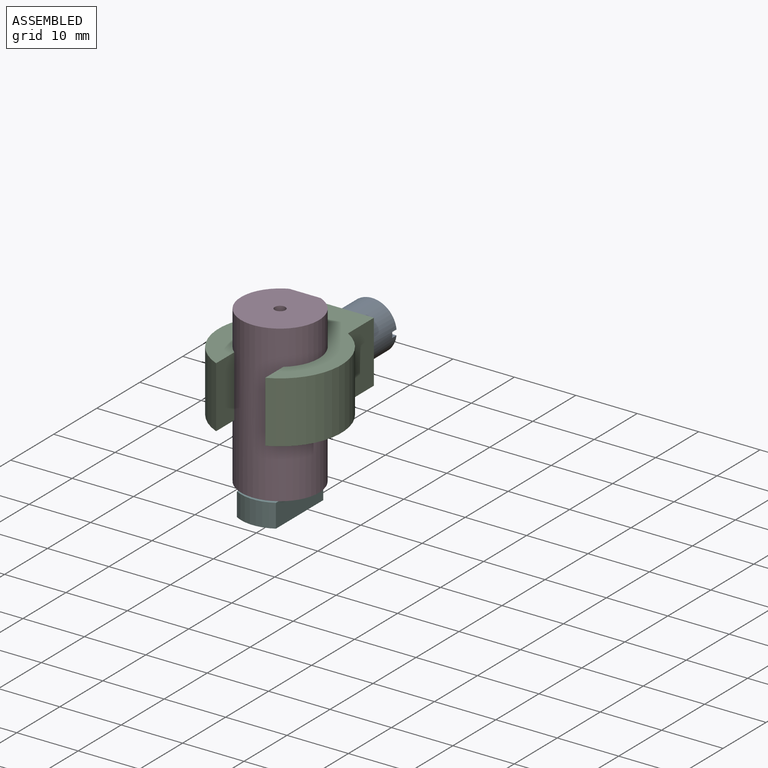
[diagram: assembled view]
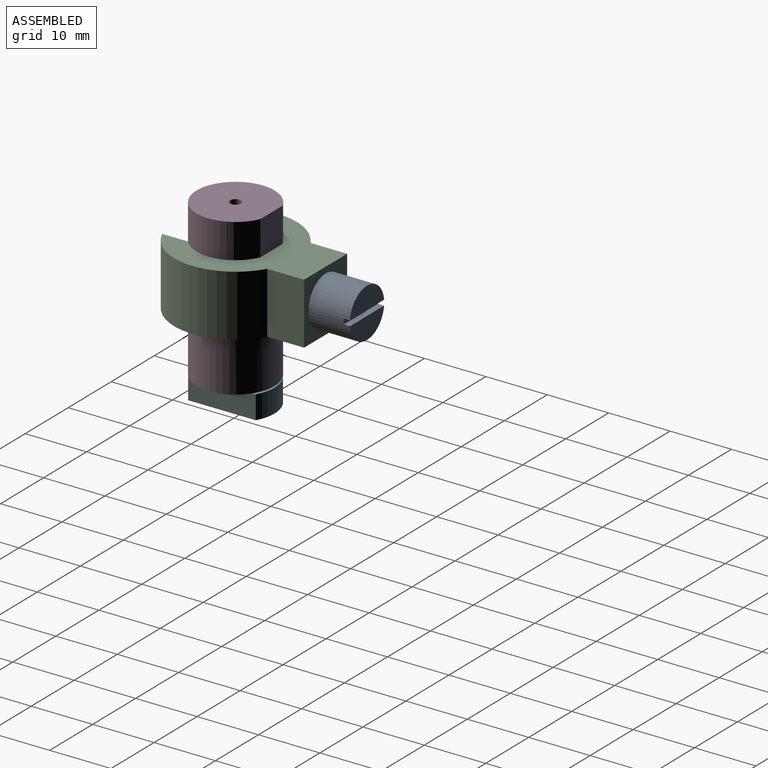
[diagram: assembled view, second angle]
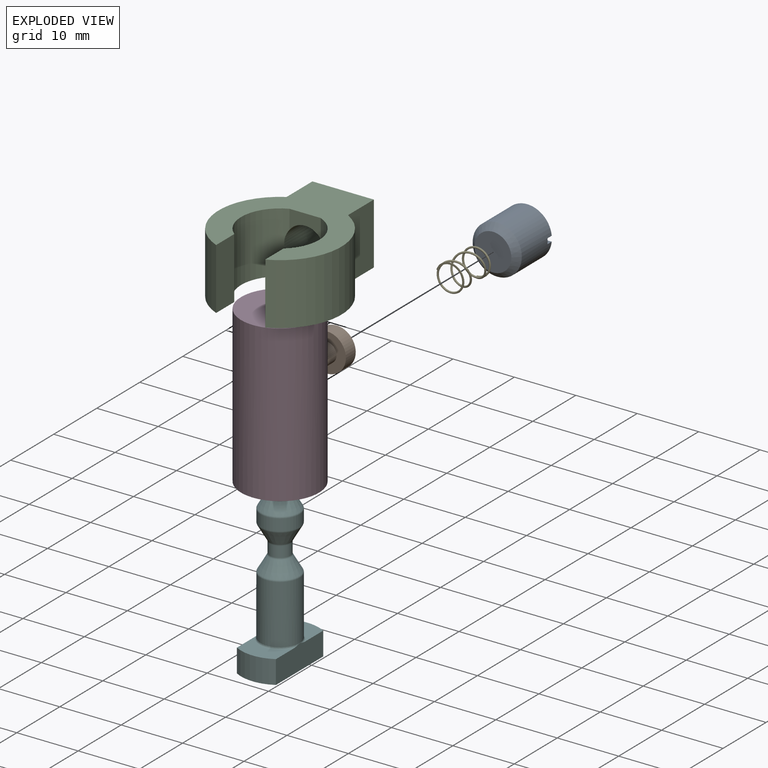
[diagram: exploded view]
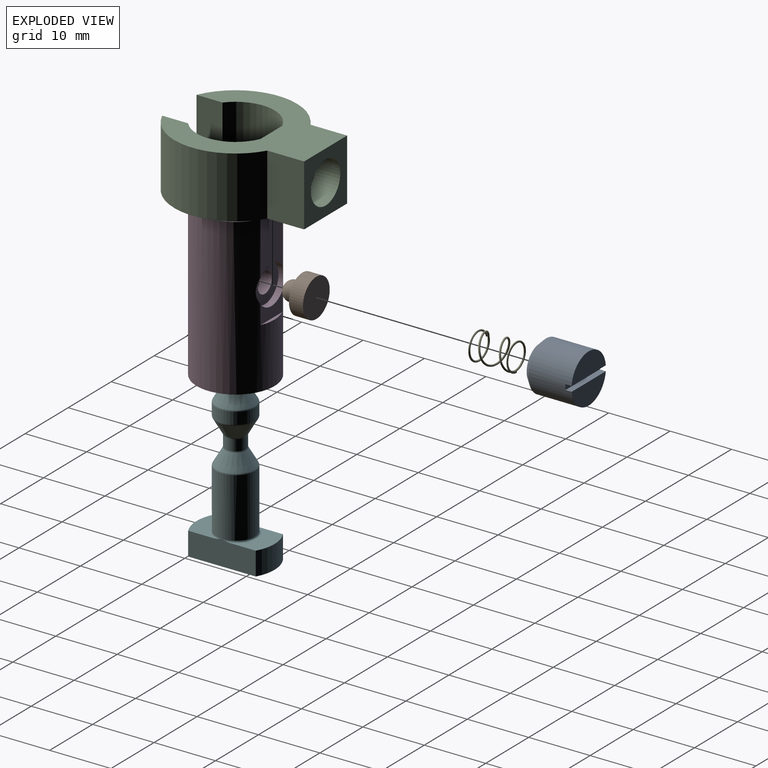
[diagram: exploded view, second angle]
ASSEMBLY  parts=6 mates=7
PART A: 8 faces, bbox 8x8x8 mm
  f0: plane 7.95x3.55mm, normal (0,0,1), area 21.5mm2, adj f1,f5
  f1: cylinder r=4mm len=8mm, axis (0,0,-1), area 174.2mm2, adj f0,f2,f4,f5,f6,f7
  f2: plane 7.96x3.58mm, normal (0,0,1), area 21.8mm2, adj f1,f6
  f3: plane 6x6mm, normal (0,0,-1), area 28.3mm2, adj f7
  f4: plane 8x0.87mm, normal (0,0,1), area 7mm2, adj f1,f5,f6
  f5: plane 7.95x1mm, normal (0,-1,0), area 7.9mm2, adj f0,f1,f4
  f6: plane 7.96x1mm, normal (0,1,0), area 8mm2, adj f1,f2,f4
  f7: cone r=4mm half-angle=45deg, axis (0,0,1), area 31.1mm2, adj f1,f3
PART B: 6 faces, bbox 6.2x6.2x5.1 mm
  f0: cylinder r=3.11mm len=6.22mm, axis (0,0,-1), area 44.7mm2, adj f1,f2
  f1: plane 6.22x6.22mm, normal (0,0,1), area 22.5mm2, adj f0,f3
  f2: plane 6.22x6.22mm, normal (0,0,-1), area 30.4mm2, adj f0
  f3: cylinder r=1.59mm len=3.18mm, axis (0,0,-1), area 14.4mm2, adj f1,f4
  f4: torus R=0.19mm, axis (0,0,-1), area 14.9mm2, adj f3,f5
  f5: plane 0.38x0.38mm, normal (0,0,1), area 0.1mm2, adj f4
PART C: 16 faces, bbox 23.8x20x10 mm
  f0: plane 5.07x3.09mm, normal (1,0,0), area 11.2mm2, adj f1,f4,f10,f13
  f1: cylinder r=6.35mm len=10.75mm, axis (0,0,-1), area 128.3mm2, adj f0,f5,f10,f11,f12,f13
  f2: cylinder r=10mm len=17.83mm, axis (0,0,-1), area 220.6mm2, adj f3,f9,f10,f11
  f3: plane 10x4.23mm, normal (0,1,0), area 42.3mm2, adj f2,f4,f10,f11
  f4: cylinder r=6.35mm len=10.75mm, axis (0,0,-1), area 128.3mm2, adj f0,f3,f10,f11,f12,f13
  f5: plane 10x4.23mm, normal (0,-1,0), area 42.3mm2, adj f1,f6,f10,f11
  f6: cylinder r=10mm len=17.83mm, axis (0,0,-1), area 220.6mm2, adj f5,f7,f10,f11
  f7: plane 10x6mm, normal (0,1,0), area 60mm2, adj f6,f8,f10,f11
  f8: plane 10x10mm, normal (-1,0,0), area 63.7mm2, adj f7,f9,f10,f11,f15
  f9: plane 10x6mm, normal (0,-1,0), area 60mm2, adj f2,f8,f10,f11
  f10: plane 23.83x20mm, normal (0,0,1), area 209.6mm2, adj f0,f1,f2,f3,f4,f5,f6,f7
  f11: plane 23.83x20mm, normal (0,0,-1), area 209.6mm2, adj f1,f2,f3,f4,f5,f6,f7,f8
  f12: plane 5.07x3.09mm, normal (1,0,0), area 11.2mm2, adj f1,f4,f11,f13
  f13: cylinder r=3.17mm len=6.35mm, axis (1,0,0), area 94.3mm2, adj f0,f1,f4,f12,f14
  f14: cone r=3.4mm half-angle=59deg, axis (-1,0,0), area 5.4mm2, adj f13,f15
  f15: cylinder r=3.4mm len=6.8mm, axis (-1,0,0), area 86.8mm2, adj f8,f14
PART D: 14 faces, bbox 12.7x25.4x12.7 mm
  f0: plane 12.7x12.7mm, normal (0,-1,0), area 63.4mm2, adj f3,f7
  f1: plane 12.7x12.17mm, normal (0,1,0), area 122.5mm2, adj f3,f4,f10,f13
  f2: cylinder r=3.17mm len=6.35mm, axis (0,0,-1), area 19.4mm2, adj f3,f4,f8,f12,f13
  f3: cylinder r=6.35mm len=25.4mm, axis (0,1,0), area 921.5mm2, adj f0,f1,f2,f4,f11,f12,f13
  f4: cylinder r=6.35mm len=10.6mm, axis (0,1,0), area 6.7mm2, adj f1,f2,f3,f13
  f5: cylinder r=3.22mm len=20.81mm, axis (0,-1,0), area 412.1mm2, adj f6,f7,f9
  f6: plane 6.44x6.44mm, normal (0,-1,0), area 30.2mm2, adj f5,f10
  f7: cone r=3.22mm half-angle=26.6deg, axis (0,-1,0), area 68.8mm2, adj f0,f5
  f8: plane 6.35x6.35mm, normal (0,0,-1), area 23.1mm2, adj f2,f9
  f9: cylinder r=1.65mm len=3.3mm, axis (0,0,-1), area 18.3mm2, adj f5,f8
  f10: cylinder r=0.88mm len=2.05mm, axis (0,1,0), area 11.3mm2, adj f1,f6
  f11: plane 5.07x0.53mm, normal (0,1,0), area 1.8mm2, adj f3,f12
  f12: plane 5.07x3.11mm, normal (0,0,-1), area 11.3mm2, adj f2,f3,f11
  f13: plane 8.7x5.07mm, normal (0,0,-1), area 39.6mm2, adj f1,f2,f3,f4
PART E: 10 faces, bbox 4.7x6.6x4.7 mm
  f0: bspline ~3.08x2.36mm, area 1.7mm2, adj f1,f2,f8,f9
  f1: plane 0.32x0.16mm, normal (-1,-0.02,0), area 0mm2, adj f0,f8,f9
  f2: bspline ~4.56x4.45mm, area 6.7mm2, adj f0,f6,f8,f9
  f3: bspline ~4.56x4.12mm, area 6.6mm2, adj f5,f6,f7,f9
  f4: plane 0.31x0.16mm, normal (-0.31,0.02,0.95), area 0mm2, adj f5,f7,f9
  f5: bspline ~3.51x1.67mm, area 1.7mm2, adj f3,f4,f7,f9
  f6: bspline ~6.05x4.56mm, area 19.1mm2, adj f2,f3,f9
  f7: plane 4.44x3.99mm, normal (0,1,0), area 1.9mm2, adj f3,f4,f5,f9
  f8: plane 4.53x3.5mm, normal (0,-1,0), area 2mm2, adj f0,f1,f2,f9
  f9: cylinder r=2mm len=6.35mm, axis (0,1,0), area 5.4mm2, adj f0,f1,f2,f3,f4,f5,f6,f7
PART F: 24 faces, bbox 7.8x12.7x25.5 mm
  f0: plane 6.35x5.07mm, normal (0,0,1), area 20.6mm2, adj f2,f6,f22,f23
  f1: plane 6.35x5.07mm, normal (0,0,1), area 20.6mm2, adj f3,f5,f22,f23
  f2: cylinder r=6.35mm len=6.35mm, axis (0,0,-1), area 25.3mm2, adj f0,f4,f22,f23
  f3: cylinder r=6.35mm len=6.35mm, axis (0,0,-1), area 25.3mm2, adj f1,f4,f22,f23
  f4: plane 12.7x6.35mm, normal (0,0,-1), area 75.1mm2, adj f2,f3,f20,f22,f23
  f5: torus R=3.43mm, axis (0,0,1), area 3.5mm2, adj f1,f7,f22,f23
  f6: torus R=3.43mm, axis (0,0,1), area 3.5mm2, adj f0,f7,f22,f23
  f7: cylinder r=3.17mm len=9.62mm, axis (0,0,-1), area 191.8mm2, adj f5,f6,f14
  f8: plane 3.12x3.12mm, normal (0,0,1), area 7.6mm2, adj f17
  f9: cone r=3.17mm half-angle=30deg, axis (0,0,-1), area 35.8mm2, adj f17,f18
  f10: cylinder r=3.17mm len=6.35mm, axis (0,0,-1), area 37.5mm2, adj f18,f19
  f11: cone r=1.67mm half-angle=30deg, axis (0,0,1), area 41.7mm2, adj f16,f19
  f12: cylinder r=1.67mm len=3.35mm, axis (0,0,-1), area 18.2mm2, adj f15,f16
  f13: cone r=3.17mm half-angle=30deg, axis (0,0,-1), area 41.7mm2, adj f14,f15
  f14: torus R=2.67mm, axis (0,0,-1), area 5.2mm2, adj f7,f13
  f15: torus R=2.17mm, axis (0,0,-1), area 2.8mm2, adj f12,f13
  f16: torus R=2.17mm, axis (0,0,-1), area 2.8mm2, adj f11,f12
  f17: torus R=1.56mm, axis (0,0,1), area 5.9mm2, adj f8,f9
  f18: torus R=2.67mm, axis (0,0,1), area 5.2mm2, adj f9,f10
  f19: torus R=2.67mm, axis (0,0,1), area 5.2mm2, adj f10,f11
  f20: cylinder r=0.8mm len=5.3mm, axis (0,0,-1), area 26.6mm2, adj f4,f21
  f21: plane 1.6x1.6mm, normal (0,0,-1), area 2mm2, adj f20
  f22: plane 11.05x4.1mm, normal (-1,0,0), area 42mm2, adj f0,f1,f2,f3,f4,f5,f6
  f23: plane 11.05x4.1mm, normal (1,0,0), area 42mm2, adj f0,f1,f2,f3,f4,f5,f6
PLACE A rot(axis=(-1,0,0),90deg) t=(17.37,29.83,0.64)mm
PLACE B rot(axis=(1,0,0),90deg) t=(17.37,23.48,0.64)mm
PLACE C rot(axis=(0,0,-1),90deg) t=(17.37,16.43,-4.38)mm fixed
PLACE D rot(axis=(1,0,0),90deg) t=(11.02,29.19,70.37)mm
PLACE E rot(axis=(-1,0,0),180deg) t=(17.37,29.53,0.64)mm
PLACE F t=(17.37,16.43,-18.21)mm
MATE slider F.f2 <-> D.f5  axis (0,0,1) through (17.37,16.43,6.99)mm
MATE fastened E.f9 <-> A.f7  axis (0,1,0) through (17.37,29.83,0.64)mm
MATE fastened B.f0 <-> D.f2  axis (0,-1,0) through (17.37,21.19,0.64)mm
MATE fastened B.f0 <-> E.f9  axis (0,1,0) through (17.37,23.48,0.64)mm
MATE slider D.f3 <-> C.f1  axis (0,0,1) through (17.37,16.43,-1.46)mm
MATE fastened F.f2 <-> D.f5  axis (0,0,-1) through (17.37,16.43,-14.16)mm
MATE fastened D.f11 <-> C.f11  axis (0,0,1) through (17.37,22.25,-4.38)mm
